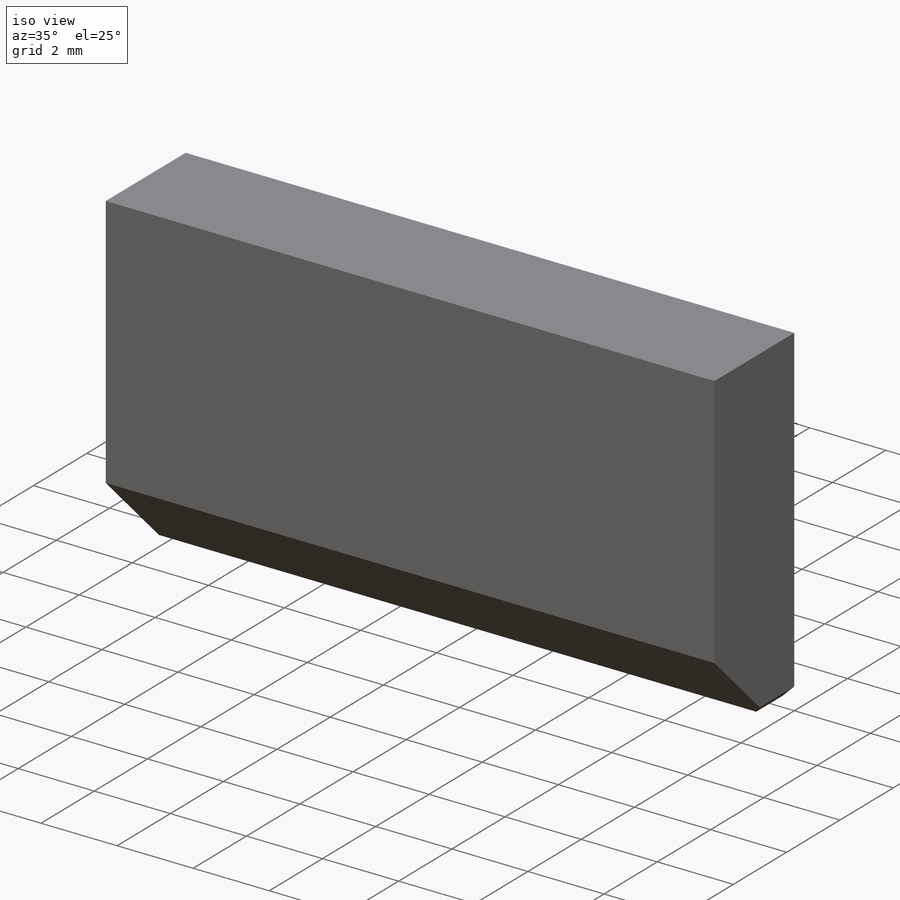
[diagram: iso view]
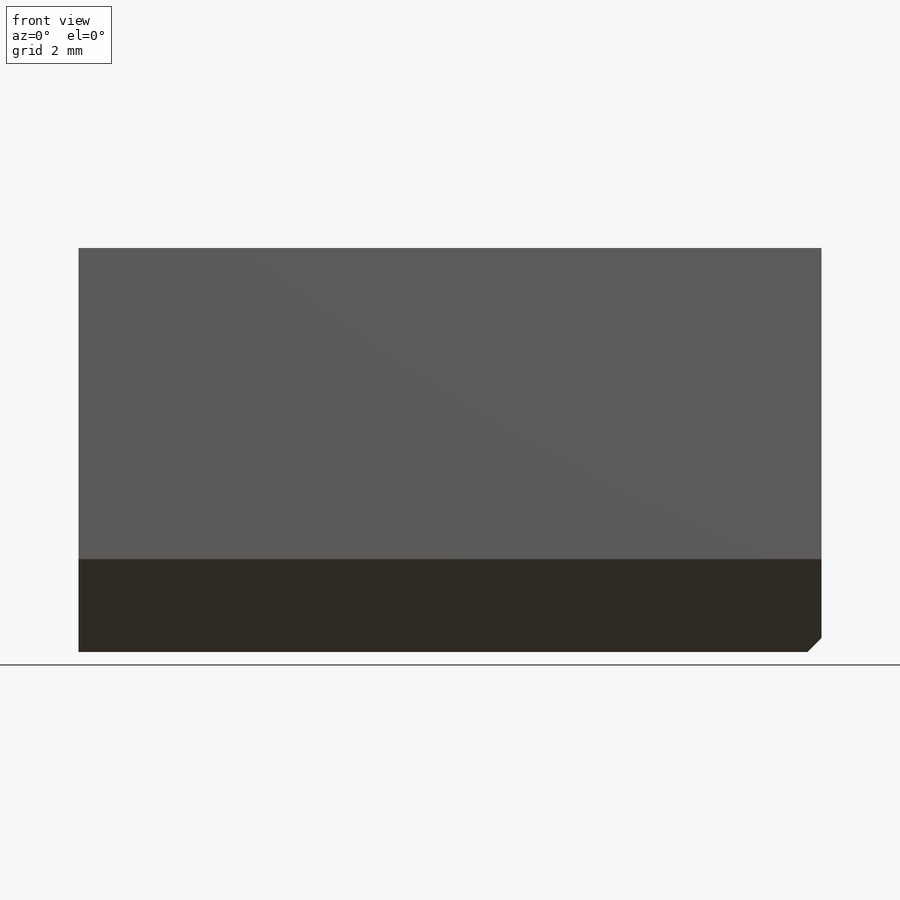
[diagram: front view]
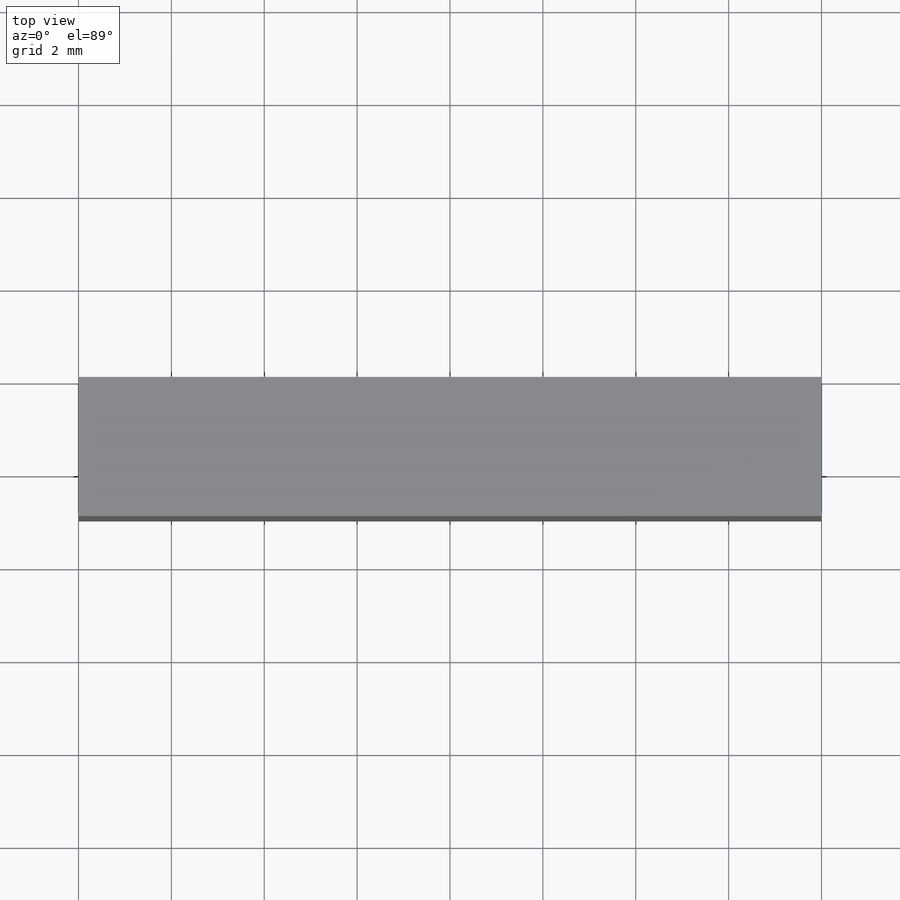
[diagram: top view]
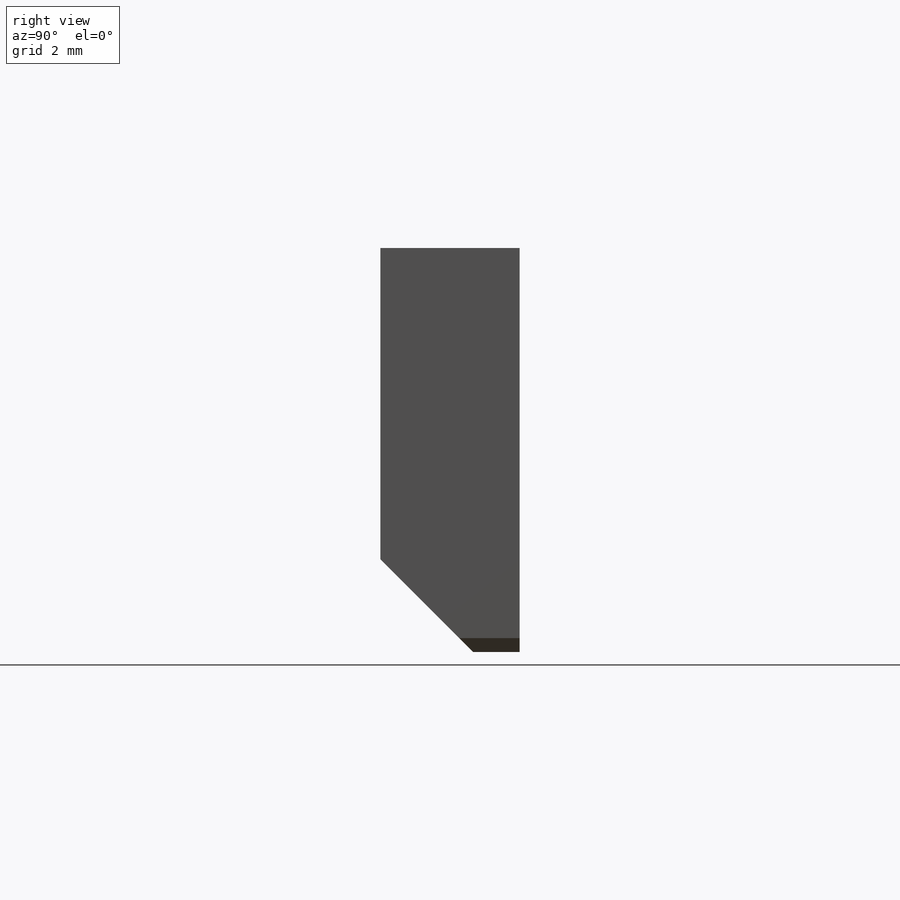
[diagram: right view]
SOLIDWORKS PART (.sldprt)
format: sldprt  version: not decoded by parser v0  size: 133,120 bytes
history: native  units: mm
features: plane x3, chamfer x3, material x1, sketch x1, extrude x1 (+12 scaffold rows collapsed)
feature tree (21):
  scaffold x12  (default folders/planes/origin — collapsed)
  material  "Стекло"
  plane  "Спереди"
  plane  "Сверху"
  plane  "Справа"
  sketch  "Эскиз1"  dims[D1=8.7mm D2=16.0mm]
  extrude  "Вытянуть1"  Depth=3mm
  chamfer  "Фаска3"  Distance=2mm Angle=45deg
  chamfer  "Фаска1"  Distance=0.3mm Angle=45deg Material_Int=0mm Material_Ext=0mm Surface=0mm
  chamfer  "Фаска4"  Distance=0.3mm Angle=45deg
decode coverage: 5 of 5 modeling features carry decoded parameters
note: suppression state not decoded; provenance and decode notes live in map.json
